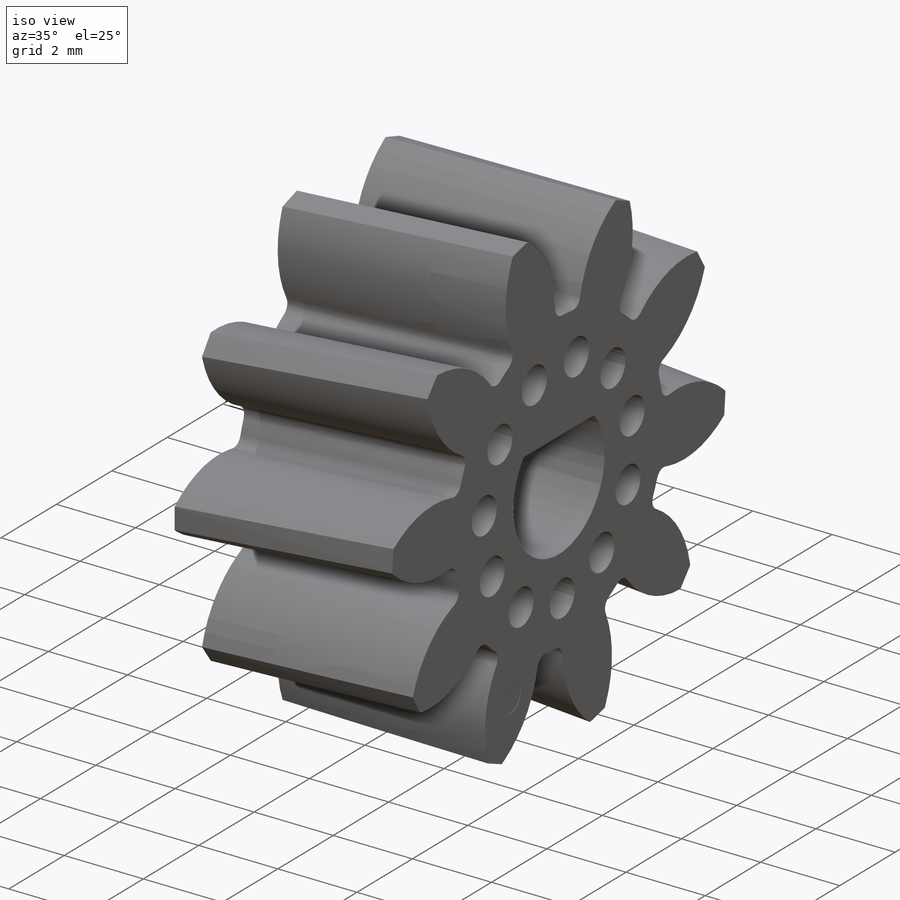
[diagram: iso view]
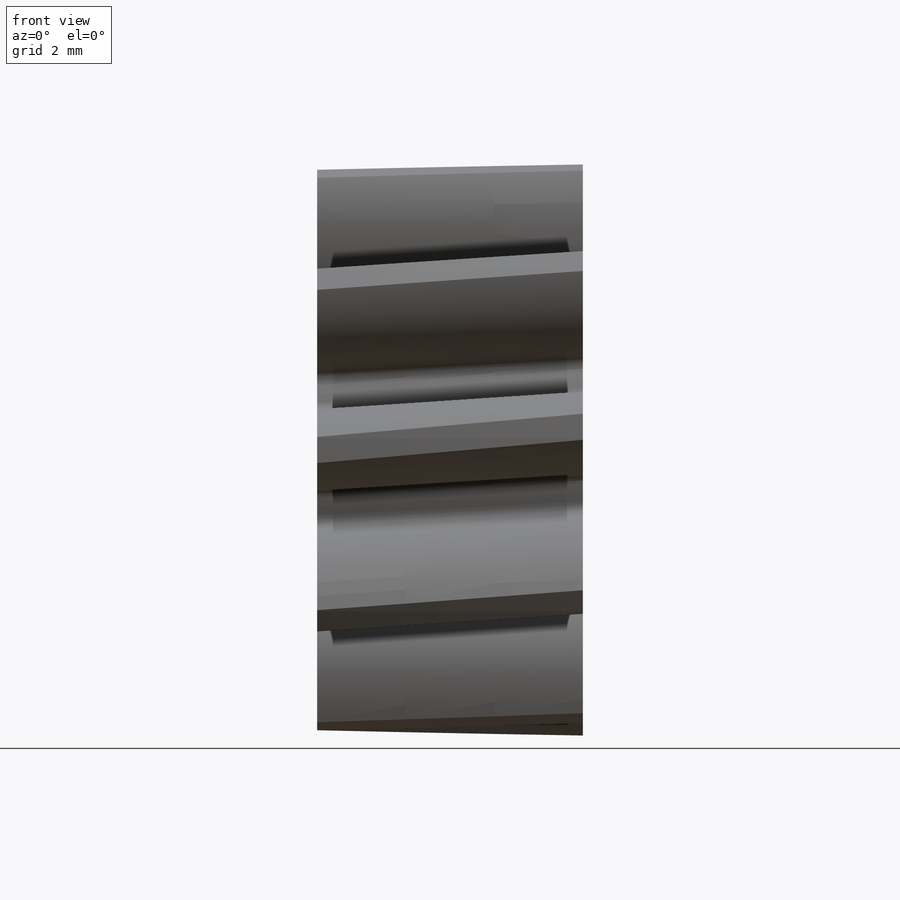
[diagram: front view]
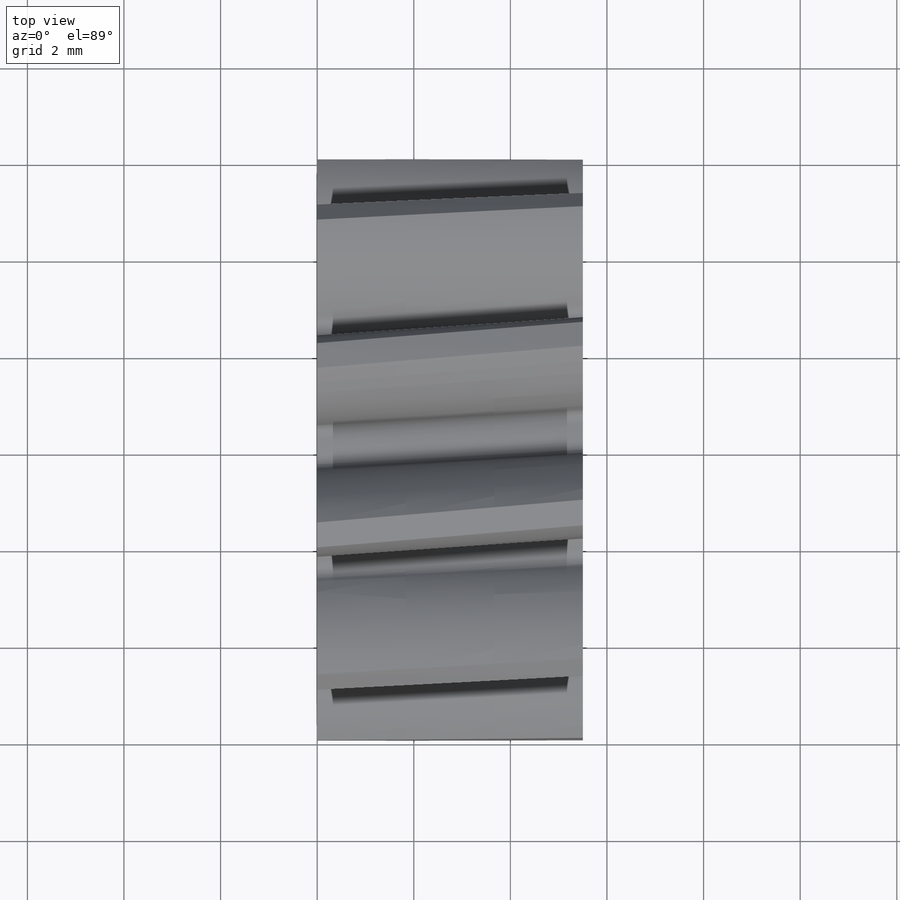
[diagram: top view]
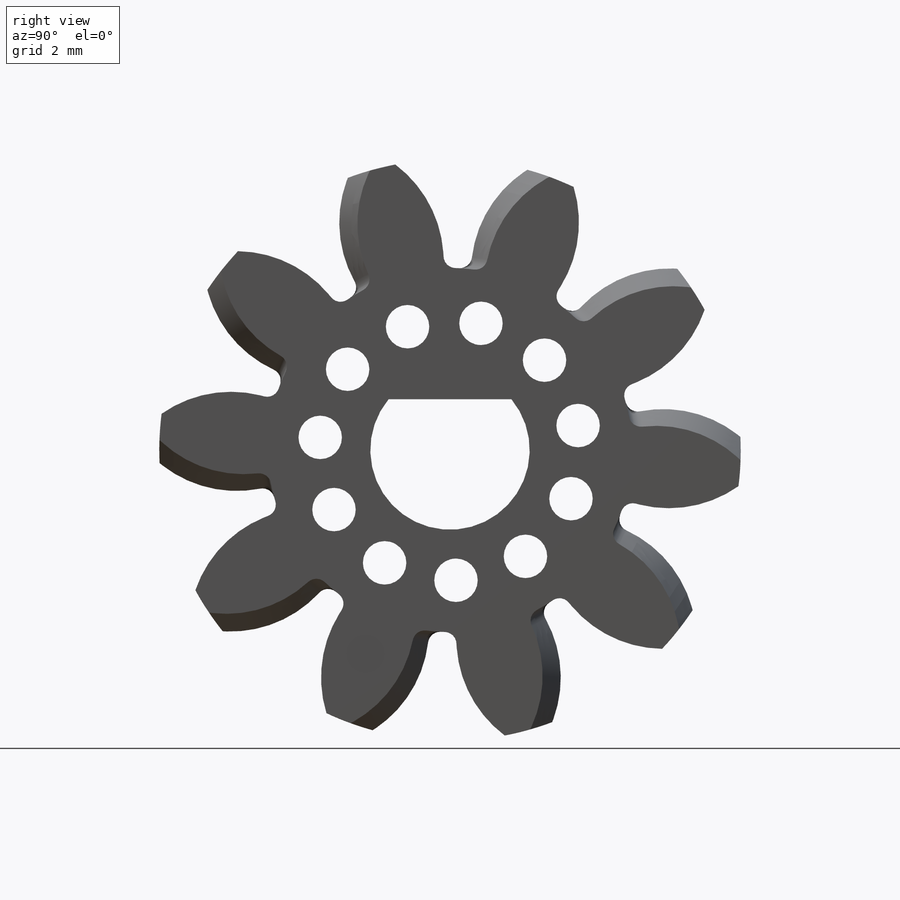
[diagram: right view]
SOLIDWORKS PART (.sldprt)
format: sldprt  version: not decoded by parser v0  size: 1,497,600 bytes
history: native  units: mm
features: sketch x16, cut_extrude x6, plane x4, pattern_circular x4, extrude x4, helix x2, sweep x2, material x1, revolve x1 (+10 scaffold rows collapsed)
feature tree (50):
  scaffold x10  (default folders/planes/origin — collapsed)
  material  "Material <nicht angegeben>"
  plane  "Plane1"
  plane  "Plane2"
  plane  "Plane3"
  sketch  "HoldingSke"  dims[c1.Dr=15.875mm c1.MHD=~7.507513mm c1.Hub_dia=75.0mm c1.Bore=0.8mm c1.MBD=0.8mm c1.Num_teeth=7.0mm c1.D1=115.0mm c2.Num_teeth=10.0deg c2.Pitch_radius=~46.415395mm c2.Pitch=1.0mm c2.Width=8.636mm c2.Chamfer_wid=3.175mm c2.Chamfer_dep=12.7mm c2.Overall_len=50.0mm c2.D1=115.0mm c2.Show_teeth=10.0deg c2.Thickness=9.0mm c2.OAL=~50.000002mm c2.T_dim=0.1mm c3.D1=115.0mm c3.Ap=20.0deg c3.H=19.05mm c3.Pitch_radius=~180.312849mm c3.Width=9.0mm c3.F=44.45mm c3.Backlash=0.038mm c3.Addendum_factor=~25.318689mm c3.Dedendum_factor=~11.91639mm c3.Fillet_factor=5.08mm c4.D1=~180.312849mm c4.Addendum_fac=1.0deg c5.D1=~180.312849mm c5.Dedendum_fac=1.25deg c6.D1=~180.312849mm c6.Clearance_fac=0.25deg c6.Dedendum_add=0.001mm c7.D1=115.0mm c7.Helix_angle=5.0deg c7.Factored_DP=~1.00382mm c7.normalizedPitch=~94.737744mm]
  sketch  "BasProSke"  dims[c1.D2=~57.067268mm c1.D3=~57.067268mm c1.Fillet_rad=0.635mm c1.D1=80.0mm c1.h=15.875mm c2.D2=15.875mm c2.G1=0.635mm c2.G2=0.635mm c2.H2=~13.49375mm c2.Diameter=~80.079479mm c2.H1=~13.49375mm c2.Thickness=9.0mm c3.Diameter=~12.038198mm c3.MHD=25.4mm c3.D2=12.7mm c4.MHD=25.4mm c4.MHD_radius=12.7mm c5.MHD_radius=12.7mm c5.D1=~92.83079mm c6.D1=45.0deg c6.D2=~92.83079mm c7.D2=45.0deg]
  revolve  "Base-Revolve"  Angle=360deg
  sketch  "TooCutSkeRH"  dims[c1.D1=50.8mm c1.D2=101.6mm c1.R=~8.015287mm c2.D1=~10.148041mm c2.E=~20.715287mm c2.F=~13.61213mm c2.R=15.24mm c2.Db=~91.584948mm c2.H=19.05mm c2.Pitch_radius=~111.396948mm c2.Rt=38.1mm c2.Root_dia=~7.538198mm c2.Overcut_dia=~12.399344mm c2.Pitch_dia=~10.038198mm c2.Base_dia=~9.428601mm c2.Flank_rad=2.5mm c2.Root_fillet=0.251mm c2.D3=45.0mm c3.D3=30.0deg c3.Pitch_radius=~37.132316mm c3.D1=~5.323628mm c3.W=~20.884668mm c3.V=0.762mm c4.V=~7.601398mm c4.D1=107.0mm c5.D1=~11.986918deg c6.D1=6.35mm c6.Ag=66.0deg c6.Cp=3.81mm c7.D1=~9.360719mm c8.D1=19.0deg c9.D1=~4.754529mm c9.Ag=64.0deg c9.L=~2.066544mm c9.Wf=6.858mm c10.D1=~10.255297mm c10.ANGLE=40.0deg c11.D1=~10.255297mm c11.Angle=40.0deg c12.D1=12.7mm c12.D2=~288.740008mm c12.TestA=130.0deg c12.TestL=63.5mm c13.D2=~92.83079mm c13.TestA=70.0deg c13.D1=~14.973046mm c13.Angle=18.0deg c14.D1=~60.512969mm c14.Half_ang=18.0deg c14.Half_CT=~0.788398mm c15.D1=31.75mm c15.Pres_ang=14.5deg c15.A=~41.666667deg c15.B=~11.777778deg c15.Angle=40.0deg]
  sketch  "Sketch1"
  helix  "HelixRH"  Pitch=9mm HelixLength=9mm
  sketch  "Sketch2"  dims[D1=0.0mm]
  helix  "HelixLH"  Pitch=9mm HelixLength=9mm
  sweep  "ToothCutRH"
  pattern_circular  "TeethCutsRH"  Count=10 Angle=36deg Num_teeth=10
  sweep  "ToothCutLH"
  sketch  "TooCutSkeRH<3>"
  pattern_circular  "TeethCutsLH"  Count=10 Angle=36deg Num_teeth=10
  sketch  "HubNeaOneSke"  dims[Diameter=~7.507513mm]
  extrude  "HubNearOne"  Depth=41.000002mm Length=41.000002mm
  sketch  "HubNeaBotSke"  dims[Diameter=~7.507513mm]
  extrude  "HubNearBoth"  Depth=20.500001mm Length=20.500001mm
  plane  "FarPln"  Offset=9mm Thickness=9mm
  sketch  "HubFarSke"  dims[Diameter=~7.507513mm]
  extrude  "HubFar"  Depth=20.500001mm Length=20.500001mm
  sketch  "BorSke"  dims[Diameter=0.8mm D2=35.0mm D3=12.0mm]
  cut_extrude  "Bore"  Depth=125.000005mm
  sketch  "KeySke"  dims[D1=60.0mm Offset=0.5mm Width=0.1mm]
  cut_extrude  "Keyway"  Depth=125.000005mm
  pattern_circular  "Keyway2"  Count=2 Angle=90deg
  sketch  "bore-3.3"  dims[D1=3.3mm]
  cut_extrude  "-bore 3.3"  [1 undecoded]
  sketch  "D-Shaft"
  extrude  "-D-Shaft"  [1 undecoded]
  sketch  "topcut"  dims[D1=13.0mm]
  cut_extrude  "top-cut"  Depth=3.5mm
  sketch  "boreX"  dims[D1=5.4mm D2=0.9mm]
  cut_extrude  "holy"  [1 undecoded]
  pattern_circular  "Kreismuster1"  Count=11 Angle=360deg
  sketch  "Skizze1"  dims[D1=~0.780956mm]
  cut_extrude  "Schnitt-Linear austragen1"  Depth=0.01mm
decode coverage: 27 of 35 modeling features carry decoded parameters
note: ~ marks probable driven/reference dimensions
note: 3 parameter values undecoded
summary: no parameter record found for 3 features
note: suppression state not decoded; provenance and decode notes live in map.json
